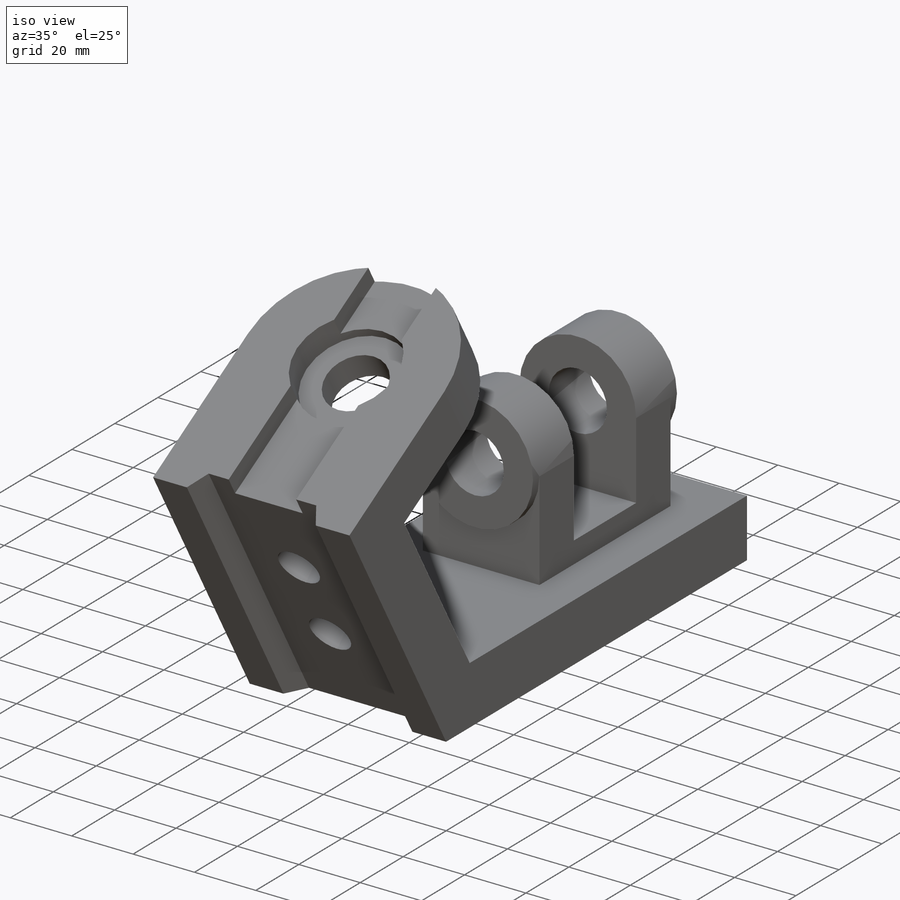
[diagram: iso view]
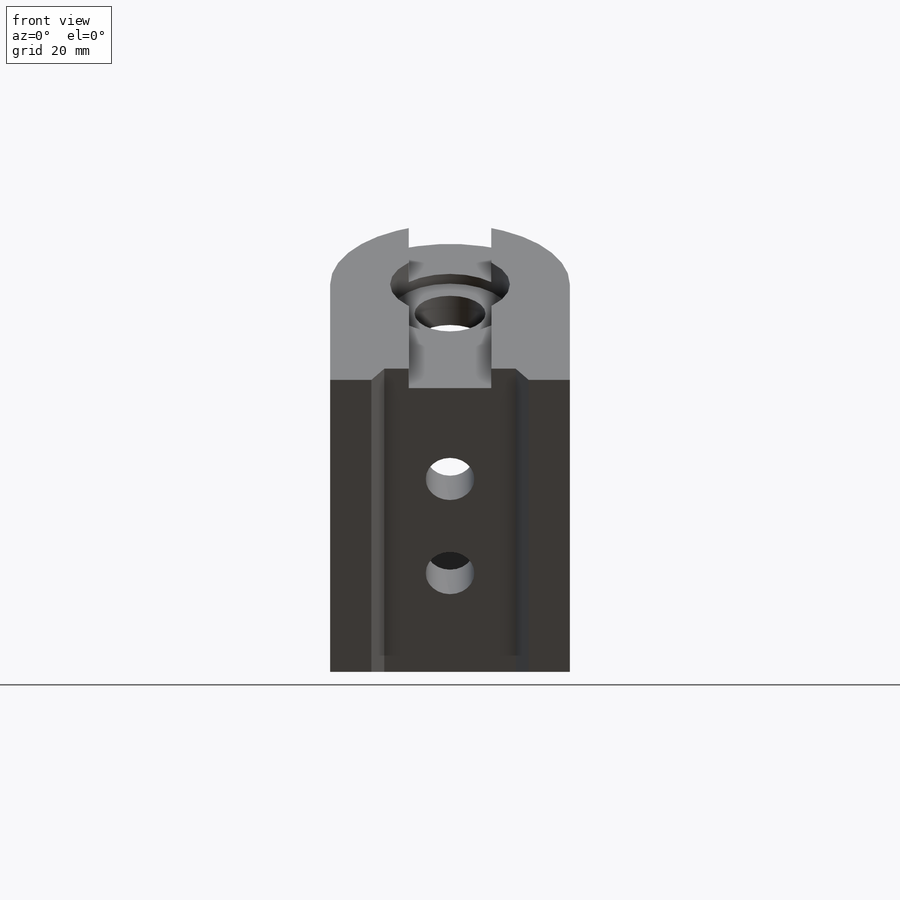
[diagram: front view]
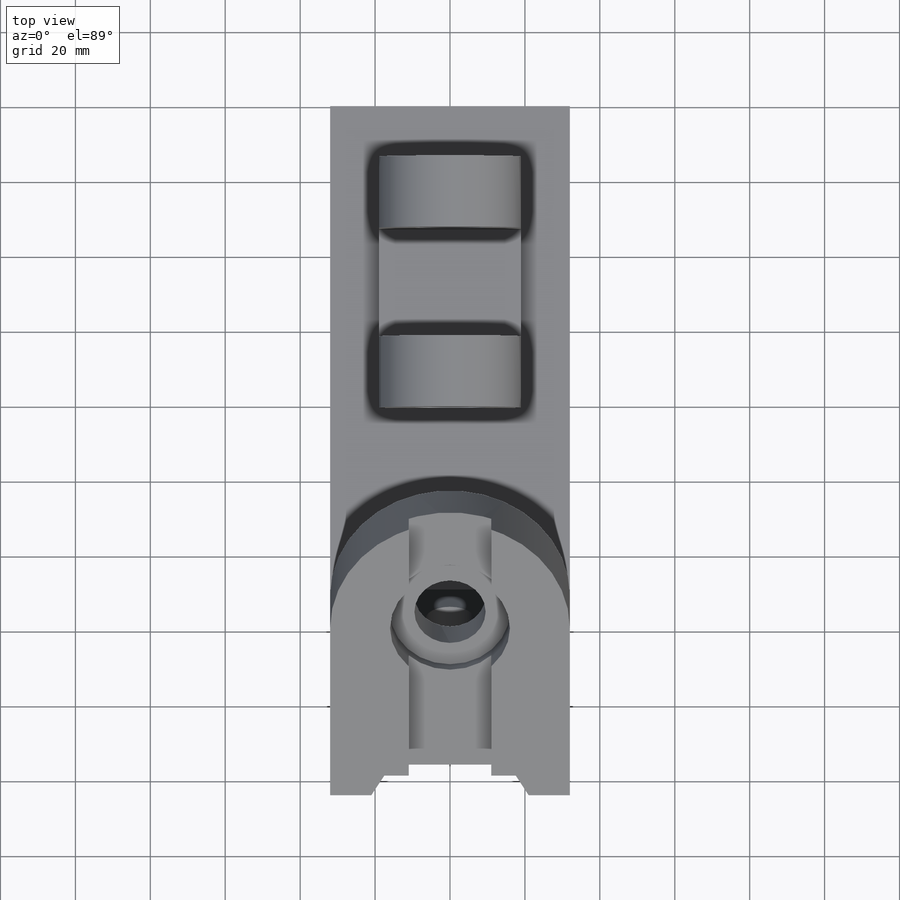
[diagram: top view]
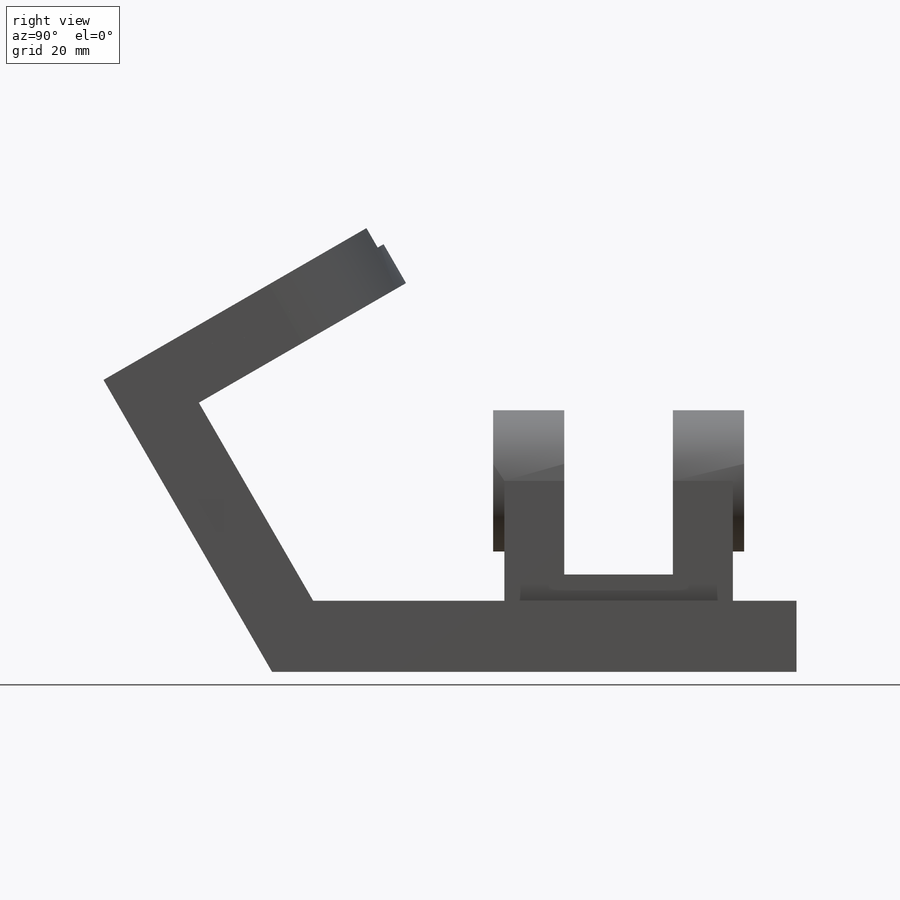
[diagram: right view]
SOLIDWORKS PART (.sldprt)
format: sldprt  version: not decoded by parser v0  size: 330,240 bytes
history: native  units: mm
features: sketch x11, cut_extrude x7, extrude x4, material x1, plane x1 (+13 scaffold rows collapsed)
feature tree (37):
  scaffold x13  (default folders/planes/origin — collapsed)
  material  "Material <not specified>"
  sketch  "Sketch1"  dims[c1.D1=140.0mm c1.D2=19.0mm c1.D3=19.0mm c1.D4=90.0mm c1.D5=~78.167288mm c2.D5=60.0deg]
  extrude  "Boss-Extrude1"  Depth=64mm
  sketch  "Sketch2"  dims[D1=64.0mm D2=51.0mm]
  extrude  "Boss-Extrude2"  Depth=18mm
  sketch  "Sketch3"  dims[c1.D1=21.0mm c1.D2=21.0mm c1.D3=~7.730907mm c2.D3=120.0deg c2.D4=~8.028422mm c3.D4=120.0deg c3.D5=6.0mm]
  cut_extrude  "Cut-Extrude1"  [1 undecoded]
  sketch  "Sketch4"  dims[D1=11.0mm D2=11.0mm]
  cut_extrude  "Cut-Extrude2"  Depth=6mm
  sketch  "Sketch5"  dims[D1=32.0mm D2=19.0mm]
  cut_extrude  "Cut-Extrude3"  Depth=9mm
  sketch  "Sketch6"  dims[D1=19.0mm]
  cut_extrude  "Cut-Extrude4"  [1 undecoded]
  sketch  "Sketch7"  dims[D1=13.0mm D2=13.0mm D3=28.0mm D4=29.0mm D5=32.0mm D6=32.0mm]
  cut_extrude  "Cut-Extrude5"  [1 undecoded]
  plane  "Plane1"  Offset=17mm
  sketch  "Sketch9"  dims[D2=38.0mm D1=32.0mm D3=32.0mm]
  extrude  "Boss-Extrude3"  Depth=61mm
  sketch  "Sketch10"  dims[D1=38.0mm]
  extrude  "Boss-Extrude4"  Depth=3mm
  sketch  "Sketch11"  dims[D1=19.0mm]
  cut_extrude  "Cut-Extrude6"  [1 undecoded]
  sketch  "Sketch12"  dims[D1=29.0mm D2=19.0mm D3=25.0mm]
  cut_extrude  "Cut-Extrude7"  [1 undecoded]
decode coverage: 17 of 22 modeling features carry decoded parameters
note: ~ marks probable driven/reference dimensions
note: 5 parameter values undecoded
summary: no parameter record found for 5 features
note: suppression state not decoded; provenance and decode notes live in map.json
